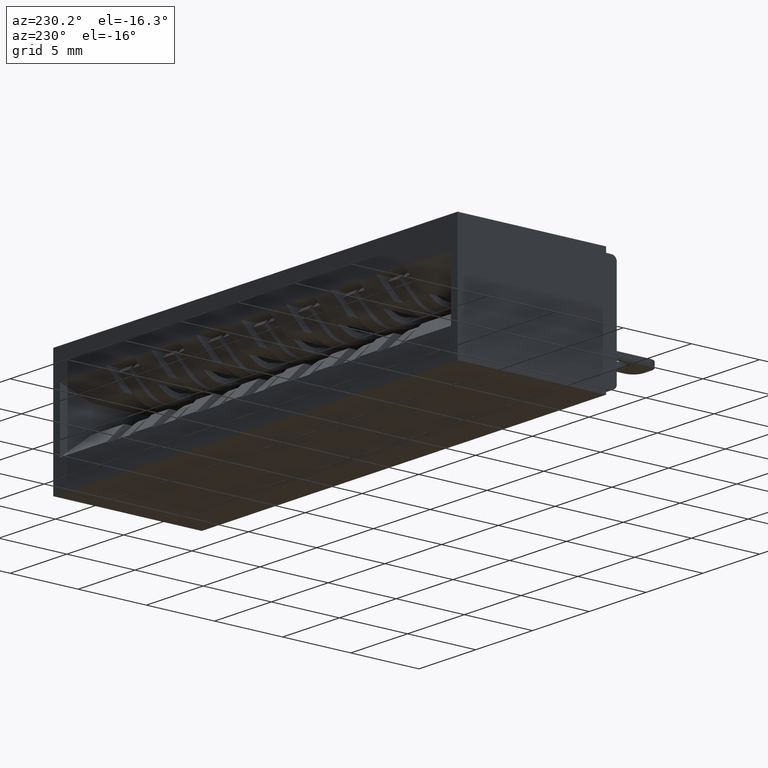
[diagram: clean part render]
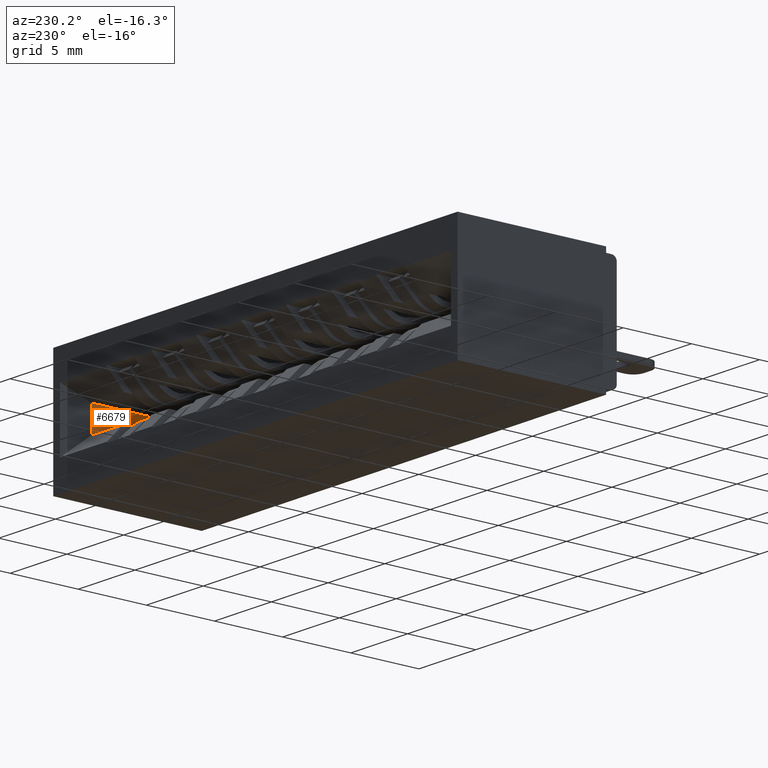
[diagram: same view with one face highlighted and labeled with its STEP entity id]
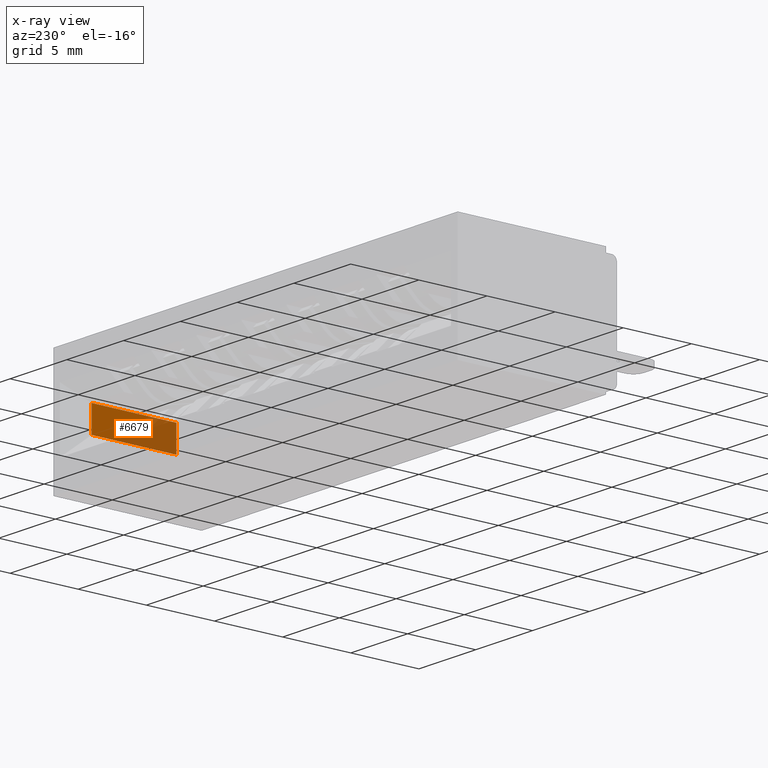
[diagram: x-ray of the same camera — body ghosted, the highlighted face saturated]
A machine part, auxiliary view. The second image highlights one B-rep face of the part: STEP entity #6679.
The next image is the same camera in x-ray: the body ghosted, the highlighted face saturated — about 53% of this face is hidden behind the body in this view.
In plain terms, the highlighted planar face has unit normal (1, 0, 0).
Its self-contained STEP definition (entity closure, byte-faithful):
#49 = VECTOR ( 'NONE', #3290, 39.37007874015748100 ) ;
#297 = VERTEX_POINT ( 'NONE', #10708 ) ;
#423 = LINE ( 'NONE', #8427, #7680 ) ;
#2695 = EDGE_CURVE ( 'NONE', #6430, #297, #423, .T. ) ;
#2696 = EDGE_CURVE ( 'NONE', #297, #6583, #3071, .T. ) ;
#2698 = EDGE_CURVE ( 'NONE', #4070, #6583, #5609, .T. ) ;
#2719 = EDGE_CURVE ( 'NONE', #6430, #4070, #9201, .T. ) ;
#3071 = LINE ( 'NONE', #6804, #9440 ) ;
#3127 = DIRECTION ( 'NONE',  ( -0.0000000000000000000, 1.000000000000000000, -0.0000000000000000000 ) ) ;
#3290 = DIRECTION ( 'NONE',  ( -0.0000000000000000000, -0.0000000000000000000, -1.000000000000000000 ) ) ;
#4070 = VERTEX_POINT ( 'NONE', #10020 ) ;
#4212 = EDGE_LOOP ( 'NONE', ( #7797, #8492, #7834, #7956 ) ) ;
#5328 = VECTOR ( 'NONE', #3127, 39.37007874015748100 ) ;
#5609 = LINE ( 'NONE', #8852, #5328 ) ;
#5694 = FACE_OUTER_BOUND ( 'NONE', #4212, .T. ) ;
#6430 = VERTEX_POINT ( 'NONE', #7552 ) ;
#6583 = VERTEX_POINT ( 'NONE', #7039 ) ;
#6679 = ADVANCED_FACE ( 'NONE', ( #5694 ), #7056, .F. ) ;
#6744 = DIRECTION ( 'NONE',  ( -0.0000000000000000000, 1.000000000000000000, -0.0000000000000000000 ) ) ;
#6804 = CARTESIAN_POINT ( 'NONE',  ( 1.627000000000001600, 0.4099999999999997000, -0.2085000000000003500 ) ) ;
#6878 = CARTESIAN_POINT ( 'NONE',  ( 1.627000000000001600, 0.1650000000000000100, -0.2085000000000003500 ) ) ;
#7039 = CARTESIAN_POINT ( 'NONE',  ( 1.627000000000001600, 0.4099999999999997000, -0.2085000000000003500 ) ) ;
#7056 = PLANE ( 'NONE',  #8697 ) ;
#7315 = DIRECTION ( 'NONE',  ( -0.0000000000000000000, 0.0000000000000000000, -1.000000000000000000 ) ) ;
#7326 = DIRECTION ( 'NONE',  ( 1.000000000000000000, 0.0000000000000000000, -0.0000000000000000000 ) ) ;
#7552 = CARTESIAN_POINT ( 'NONE',  ( 1.627000000000001600, 0.1650000000000000100, -0.1345000000000003400 ) ) ;
#7680 = VECTOR ( 'NONE', #6744, 39.37007874015748100 ) ;
#7797 = ORIENTED_EDGE ( 'NONE', *, *, #2695, .T. ) ;
#7834 = ORIENTED_EDGE ( 'NONE', *, *, #2698, .F. ) ;
#7956 = ORIENTED_EDGE ( 'NONE', *, *, #2719, .F. ) ;
#8427 = CARTESIAN_POINT ( 'NONE',  ( 1.627000000000001600, 0.1650000000000000100, -0.1345000000000003400 ) ) ;
#8433 = DIRECTION ( 'NONE',  ( 0.0000000000000000000, 0.0000000000000000000, -1.000000000000000000 ) ) ;
#8492 = ORIENTED_EDGE ( 'NONE', *, *, #2696, .T. ) ;
#8697 = AXIS2_PLACEMENT_3D ( 'NONE', #6878, #7326, #7315 ) ;
#8852 = CARTESIAN_POINT ( 'NONE',  ( 1.627000000000001600, 0.1650000000000000100, -0.2085000000000003500 ) ) ;
#9201 = LINE ( 'NONE', #9854, #49 ) ;
#9440 = VECTOR ( 'NONE', #8433, 39.37007874015748100 ) ;
#9854 = CARTESIAN_POINT ( 'NONE',  ( 1.627000000000001600, 0.1650000000000000100, -0.2085000000000003500 ) ) ;
#10020 = CARTESIAN_POINT ( 'NONE',  ( 1.627000000000001600, 0.1650000000000000100, -0.2085000000000003500 ) ) ;
#10708 = CARTESIAN_POINT ( 'NONE',  ( 1.627000000000001600, 0.4099999999999997000, -0.1345000000000003400 ) ) ;